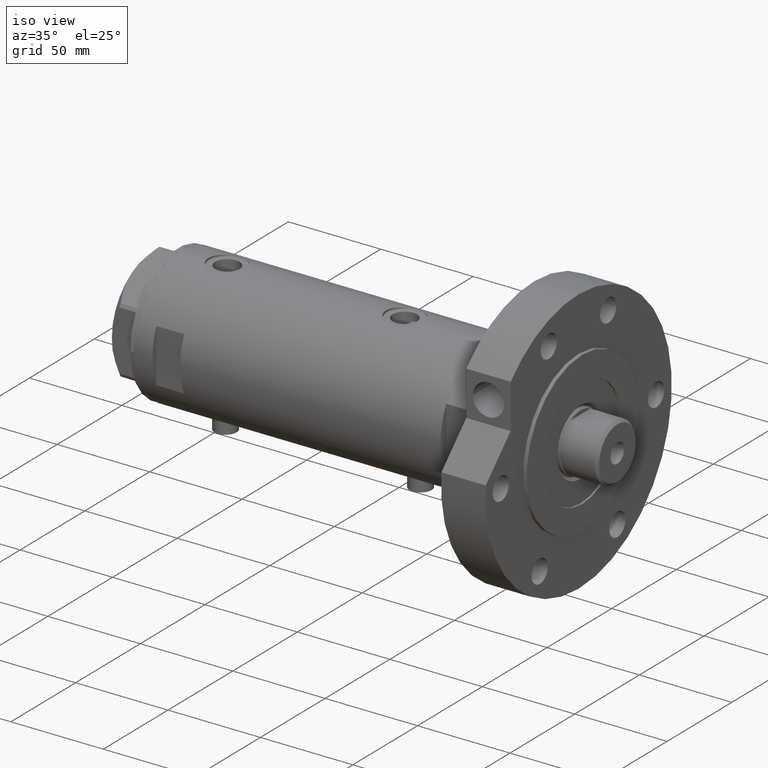
[diagram: clean part render]
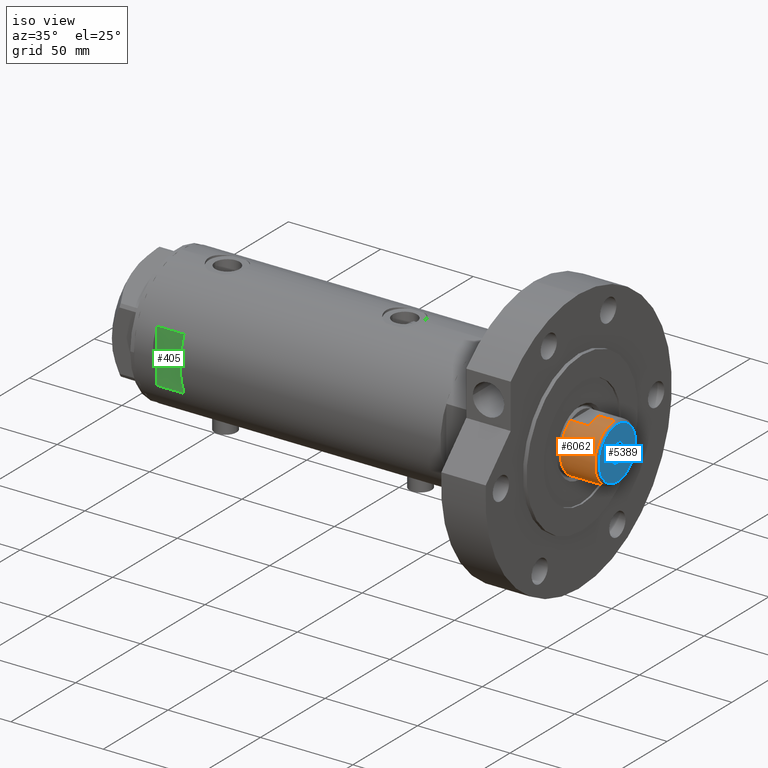
[diagram: same view with three faces highlighted in distinct colors, each labeled with its STEP entity id]
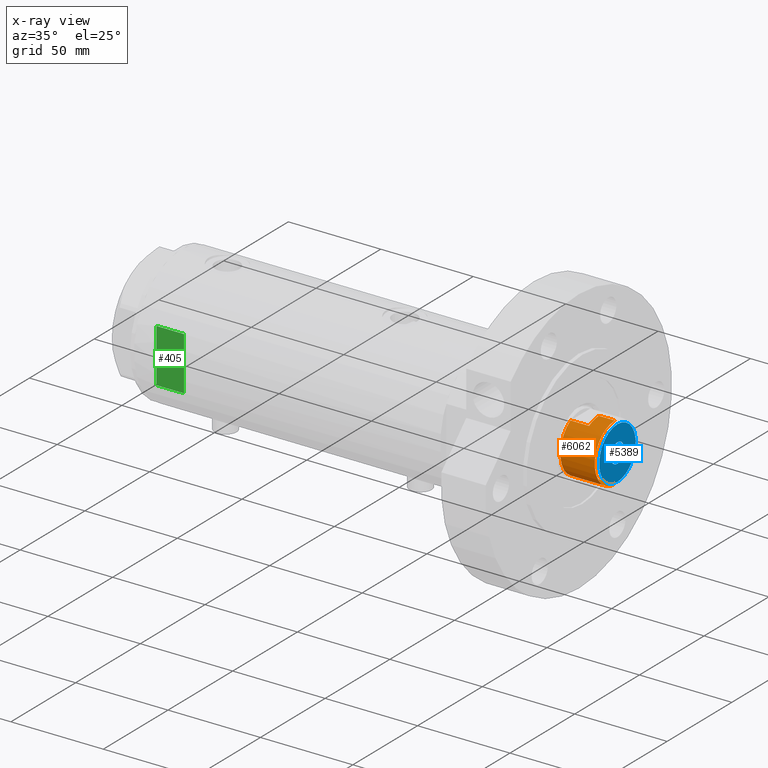
[diagram: x-ray of the same camera — body ghosted, the three highlighted faces saturated]
A machine part, iso view with three faces highlighted in distinct colors.
The next image is the same camera in x-ray (body ghosted, the three faces saturated) — at least one of them is partly hidden behind the body in this view.
Their STEP definitions:

[orange] entity #6062 — the highlighted cylindrical surface (edge-blend (fillet) strip) has radius 15.5 mm, axis along (-1, -0, 0).
#78 = DIRECTION ( 'NONE',  ( 0.000000000000000000, 0.000000000000000000, 1.000000000000000000 ) ) ;
#104 = DIRECTION ( 'NONE',  ( -0.000000000000000000, -0.000000000000000000, -1.000000000000000000 ) ) ;
#143 = DIRECTION ( 'NONE',  ( -1.000000000000000000, 0.000000000000000000, 0.000000000000000000 ) ) ;
#341 = ORIENTED_EDGE ( 'NONE', *, *, #3823, .T. ) ;
#389 = ORIENTED_EDGE ( 'NONE', *, *, #3943, .T. ) ;
#532 = ORIENTED_EDGE ( 'NONE', *, *, #3460, .T. ) ;
#569 = CARTESIAN_POINT ( 'NONE',  ( 0.000000000000000000, 0.000000000000000000, 200.0000000000000000 ) ) ;
#596 = VECTOR ( 'NONE', #4991, 1000.000000000000000 ) ;
#850 = ORIENTED_EDGE ( 'NONE', *, *, #1916, .T. ) ;
#984 = AXIS2_PLACEMENT_3D ( 'NONE', #2940, #4835, #5320 ) ;
#1025 = CARTESIAN_POINT ( 'NONE',  ( 13.48630416385453046, -7.639999999999995239, 200.0000000000000000 ) ) ;
#1053 = EDGE_CURVE ( 'NONE', #3560, #2727, #1561, .T. ) ;
#1066 = CIRCLE ( 'NONE', #1969, 15.49999999999999822 ) ;
#1126 = VERTEX_POINT ( 'NONE', #1627 ) ;
#1221 = CARTESIAN_POINT ( 'NONE',  ( 15.49999999999999822, 1.898202538678397163E-15, 208.5999999999999659 ) ) ;
#1230 = CARTESIAN_POINT ( 'NONE',  ( 15.50000000000000178, 1.898202538678397557E-15, 200.0000000000000000 ) ) ;
#1291 = CIRCLE ( 'NONE', #984, 15.49999999999999822 ) ;
#1329 = LINE ( 'NONE', #2754, #4954 ) ;
#1481 = CARTESIAN_POINT ( 'NONE',  ( 13.48630416385453046, -7.639999999999995239, 200.0000000000000000 ) ) ;
#1561 = CIRCLE ( 'NONE', #3047, 15.50000000000000000 ) ;
#1626 = ORIENTED_EDGE ( 'NONE', *, *, #1053, .T. ) ;
#1627 = CARTESIAN_POINT ( 'NONE',  ( 13.48630416385452691, -7.639999999999914415, 190.0000000000000000 ) ) ;
#1792 = VECTOR ( 'NONE', #2811, 1000.000000000000000 ) ;
#1888 = CIRCLE ( 'NONE', #3175, 15.50000000000000000 ) ;
#1916 = EDGE_CURVE ( 'NONE', #5024, #1126, #1066, .T. ) ;
#1969 = AXIS2_PLACEMENT_3D ( 'NONE', #2531, #4424, #3988 ) ;
#1996 = CARTESIAN_POINT ( 'NONE',  ( -13.48630416385452335, -7.640000000000004121, 200.0000000000000000 ) ) ;
#2169 = CARTESIAN_POINT ( 'NONE',  ( -13.48630416385452691, -7.640000000000001457, 200.0000000000000000 ) ) ;
#2268 = LINE ( 'NONE', #2169, #596 ) ;
#2504 = CARTESIAN_POINT ( 'NONE',  ( 0.000000000000000000, 0.000000000000000000, 200.0000000000000000 ) ) ;
#2531 = CARTESIAN_POINT ( 'NONE',  ( 0.000000000000000000, 0.000000000000000000, 190.0000000000000000 ) ) ;
#2727 = VERTEX_POINT ( 'NONE', #1996 ) ;
#2754 = CARTESIAN_POINT ( 'NONE',  ( 15.49999999999999822, 1.898202538678397163E-15, 200.0000000000000000 ) ) ;
#2794 = EDGE_CURVE ( 'NONE', #6013, #1126, #5305, .T. ) ;
#2811 = DIRECTION ( 'NONE',  ( -0.000000000000000000, -0.000000000000000000, -1.000000000000000000 ) ) ;
#2935 = ORIENTED_EDGE ( 'NONE', *, *, #5219, .T. ) ;
#2940 = CARTESIAN_POINT ( 'NONE',  ( 0.000000000000000000, 0.000000000000000000, 208.5999999999999659 ) ) ;
#2986 = AXIS2_PLACEMENT_3D ( 'NONE', #2504, #3861, #143 ) ;
#3039 = CARTESIAN_POINT ( 'NONE',  ( 0.000000000000000000, 0.000000000000000000, 200.0000000000000000 ) ) ;
#3047 = AXIS2_PLACEMENT_3D ( 'NONE', #569, #78, #5868 ) ;
#3175 = AXIS2_PLACEMENT_3D ( 'NONE', #3039, #5386, #4093 ) ;
#3220 = LINE ( 'NONE', #4757, #1792 ) ;
#3376 = ORIENTED_EDGE ( 'NONE', *, *, #5922, .F. ) ;
#3460 = EDGE_CURVE ( 'NONE', #6013, #4437, #1888, .T. ) ;
#3560 = VERTEX_POINT ( 'NONE', #4615 ) ;
#3806 = VERTEX_POINT ( 'NONE', #5735 ) ;
#3823 = EDGE_CURVE ( 'NONE', #4722, #3806, #1291, .T. ) ;
#3861 = DIRECTION ( 'NONE',  ( -0.000000000000000000, -0.000000000000000000, -1.000000000000000000 ) ) ;
#3943 = EDGE_CURVE ( 'NONE', #3806, #3560, #3220, .T. ) ;
#3988 = DIRECTION ( 'NONE',  ( 1.000000000000000000, 0.000000000000000000, 0.000000000000000000 ) ) ;
#4093 = DIRECTION ( 'NONE',  ( 1.000000000000000000, 0.000000000000000000, 0.000000000000000000 ) ) ;
#4346 = ORIENTED_EDGE ( 'NONE', *, *, #2794, .F. ) ;
#4389 = CARTESIAN_POINT ( 'NONE',  ( -13.48630416385452513, -7.639999999999921521, 190.0000000000000000 ) ) ;
#4424 = DIRECTION ( 'NONE',  ( 0.000000000000000000, 0.000000000000000000, 1.000000000000000000 ) ) ;
#4437 = VERTEX_POINT ( 'NONE', #1230 ) ;
#4615 = CARTESIAN_POINT ( 'NONE',  ( -15.50000000000000178, 0.000000000000000000, 200.0000000000000000 ) ) ;
#4722 = VERTEX_POINT ( 'NONE', #1221 ) ;
#4757 = CARTESIAN_POINT ( 'NONE',  ( -15.49999999999999822, 0.000000000000000000, 200.0000000000000000 ) ) ;
#4832 = FACE_OUTER_BOUND ( 'NONE', #5069, .T. ) ;
#4835 = DIRECTION ( 'NONE',  ( 0.000000000000000000, 0.000000000000000000, -1.000000000000000000 ) ) ;
#4954 = VECTOR ( 'NONE', #5168, 1000.000000000000000 ) ;
#4991 = DIRECTION ( 'NONE',  ( -0.000000000000000000, -0.000000000000000000, -1.000000000000000000 ) ) ;
#5024 = VERTEX_POINT ( 'NONE', #4389 ) ;
#5069 = EDGE_LOOP ( 'NONE', ( #3376, #341, #389, #1626, #2935, #850, #4346, #532 ) ) ;
#5168 = DIRECTION ( 'NONE',  ( -0.000000000000000000, -0.000000000000000000, -1.000000000000000000 ) ) ;
#5219 = EDGE_CURVE ( 'NONE', #2727, #5024, #2268, .T. ) ;
#5305 = LINE ( 'NONE', #1025, #5644 ) ;
#5320 = DIRECTION ( 'NONE',  ( 1.000000000000000000, 0.000000000000000000, 0.000000000000000000 ) ) ;
#5386 = DIRECTION ( 'NONE',  ( 0.000000000000000000, 0.000000000000000000, 1.000000000000000000 ) ) ;
#5644 = VECTOR ( 'NONE', #104, 1000.000000000000000 ) ;
#5735 = CARTESIAN_POINT ( 'NONE',  ( -15.49999999999999822, 0.000000000000000000, 208.5999999999999659 ) ) ;
#5764 = CYLINDRICAL_SURFACE ( 'NONE', #2986, 15.49999999999999822 ) ;
#5868 = DIRECTION ( 'NONE',  ( 1.000000000000000000, 0.000000000000000000, 0.000000000000000000 ) ) ;
#5922 = EDGE_CURVE ( 'NONE', #4722, #4437, #1329, .T. ) ;
#6013 = VERTEX_POINT ( 'NONE', #1481 ) ;
#6062 = ADVANCED_FACE ( 'NONE', ( #4832 ), #5764, .T. ) ;

[blue] entity #5389 — the highlighted planar face has unit normal (1, 0, -0).
#70 = DIRECTION ( 'NONE',  ( 1.000000000000000000, 0.000000000000000000, -0.000000000000000000 ) ) ;
#202 = CIRCLE ( 'NONE', #6051, 5.249999999999998224 ) ;
#277 = CARTESIAN_POINT ( 'NONE',  ( -14.09999999999997300, 0.000000000000000000, 210.0000000000000284 ) ) ;
#324 = VERTEX_POINT ( 'NONE', #3640 ) ;
#438 = CARTESIAN_POINT ( 'NONE',  ( -5.249999999999998224, 6.429395695523602181E-16, 210.0000000000000284 ) ) ;
#449 = DIRECTION ( 'NONE',  ( 0.000000000000000000, 0.000000000000000000, 1.000000000000000000 ) ) ;
#497 = EDGE_CURVE ( 'NONE', #2436, #4046, #4626, .T. ) ;
#558 = AXIS2_PLACEMENT_3D ( 'NONE', #5780, #3939, #2425 ) ;
#610 = DIRECTION ( 'NONE',  ( 1.000000000000000000, 0.000000000000000000, 0.000000000000000000 ) ) ;
#1148 = AXIS2_PLACEMENT_3D ( 'NONE', #3025, #4482, #610 ) ;
#1326 = EDGE_LOOP ( 'NONE', ( #2712, #4390 ) ) ;
#1452 = CARTESIAN_POINT ( 'NONE',  ( 0.000000000000000000, 0.000000000000000000, 210.0000000000000284 ) ) ;
#1453 = EDGE_CURVE ( 'NONE', #3115, #324, #4019, .T. ) ;
#1710 = ORIENTED_EDGE ( 'NONE', *, *, #6069, .F. ) ;
#1756 = EDGE_LOOP ( 'NONE', ( #1710, #3201 ) ) ;
#1994 = FACE_BOUND ( 'NONE', #1756, .T. ) ;
#2079 = AXIS2_PLACEMENT_3D ( 'NONE', #4928, #2570, #70 ) ;
#2126 = EDGE_CURVE ( 'NONE', #4046, #2436, #2465, .T. ) ;
#2173 = CARTESIAN_POINT ( 'NONE',  ( 14.09999999999997300, 1.812477262738080903E-15, 210.0000000000000284 ) ) ;
#2375 = CARTESIAN_POINT ( 'NONE',  ( 0.000000000000000000, 0.000000000000000000, 210.0000000000000284 ) ) ;
#2425 = DIRECTION ( 'NONE',  ( 1.000000000000000000, 0.000000000000000000, 0.000000000000000000 ) ) ;
#2436 = VERTEX_POINT ( 'NONE', #2173 ) ;
#2465 = CIRCLE ( 'NONE', #5828, 14.09999999999997300 ) ;
#2543 = PLANE ( 'NONE',  #2079 ) ;
#2570 = DIRECTION ( 'NONE',  ( 0.000000000000000000, 0.000000000000000000, 1.000000000000000000 ) ) ;
#2712 = ORIENTED_EDGE ( 'NONE', *, *, #2126, .T. ) ;
#3025 = CARTESIAN_POINT ( 'NONE',  ( 0.000000000000000000, 0.000000000000000000, 210.0000000000000284 ) ) ;
#3115 = VERTEX_POINT ( 'NONE', #438 ) ;
#3201 = ORIENTED_EDGE ( 'NONE', *, *, #1453, .F. ) ;
#3640 = CARTESIAN_POINT ( 'NONE',  ( 5.249999999999998224, 0.000000000000000000, 210.0000000000000284 ) ) ;
#3939 = DIRECTION ( 'NONE',  ( -0.000000000000000000, -0.000000000000000000, 1.000000000000000000 ) ) ;
#4019 = CIRCLE ( 'NONE', #558, 5.249999999999998224 ) ;
#4046 = VERTEX_POINT ( 'NONE', #277 ) ;
#4370 = DIRECTION ( 'NONE',  ( 1.000000000000000000, 0.000000000000000000, 0.000000000000000000 ) ) ;
#4390 = ORIENTED_EDGE ( 'NONE', *, *, #497, .T. ) ;
#4436 = FACE_OUTER_BOUND ( 'NONE', #1326, .T. ) ;
#4482 = DIRECTION ( 'NONE',  ( 0.000000000000000000, 0.000000000000000000, 1.000000000000000000 ) ) ;
#4626 = CIRCLE ( 'NONE', #1148, 14.09999999999997300 ) ;
#4928 = CARTESIAN_POINT ( 'NONE',  ( 0.000000000000000000, 0.000000000000000000, 210.0000000000000284 ) ) ;
#5161 = DIRECTION ( 'NONE',  ( 1.000000000000000000, 0.000000000000000000, 0.000000000000000000 ) ) ;
#5288 = DIRECTION ( 'NONE',  ( -0.000000000000000000, -0.000000000000000000, 1.000000000000000000 ) ) ;
#5389 = ADVANCED_FACE ( 'NONE', ( #4436, #1994 ), #2543, .T. ) ;
#5780 = CARTESIAN_POINT ( 'NONE',  ( 0.000000000000000000, 0.000000000000000000, 210.0000000000000284 ) ) ;
#5828 = AXIS2_PLACEMENT_3D ( 'NONE', #2375, #449, #5161 ) ;
#6051 = AXIS2_PLACEMENT_3D ( 'NONE', #1452, #5288, #4370 ) ;
#6069 = EDGE_CURVE ( 'NONE', #324, #3115, #202, .T. ) ;

[green] entity #405 — the highlighted planar face has unit normal (-0, 1, 0).
#117 = DIRECTION ( 'NONE',  ( 1.000000000000000000, -0.000000000000000000, -0.000000000000000000 ) ) ;
#226 = CARTESIAN_POINT ( 'NONE',  ( -36.50000000000000000, -33.50000000000000000, 57.89999999999999147 ) ) ;
#295 = FACE_OUTER_BOUND ( 'NONE', #677, .T. ) ;
#405 = ADVANCED_FACE ( 'NONE', ( #295 ), #2217, .F. ) ;
#411 = ORIENTED_EDGE ( 'NONE', *, *, #608, .T. ) ;
#608 = EDGE_CURVE ( 'NONE', #5166, #639, #1061, .T. ) ;
#639 = VERTEX_POINT ( 'NONE', #3954 ) ;
#677 = EDGE_LOOP ( 'NONE', ( #748, #411, #4090, #5941 ) ) ;
#748 = ORIENTED_EDGE ( 'NONE', *, *, #940, .T. ) ;
#940 = EDGE_CURVE ( 'NONE', #1347, #5166, #1444, .T. ) ;
#1061 = LINE ( 'NONE', #226, #4917 ) ;
#1347 = VERTEX_POINT ( 'NONE', #3912 ) ;
#1444 = LINE ( 'NONE', #5185, #1655 ) ;
#1455 = CARTESIAN_POINT ( 'NONE',  ( -36.50000000000000000, -33.50000000000000000, 72.89999999999999147 ) ) ;
#1655 = VECTOR ( 'NONE', #2903, 1000.000000000000000 ) ;
#1732 = DIRECTION ( 'NONE',  ( 0.000000000000000000, 1.000000000000000000, 0.000000000000000000 ) ) ;
#2217 = PLANE ( 'NONE',  #5414 ) ;
#2292 = VECTOR ( 'NONE', #5737, 1000.000000000000000 ) ;
#2635 = CARTESIAN_POINT ( 'NONE',  ( -14.49137674618942739, -33.50000000000000000, 57.89999999999999147 ) ) ;
#2690 = DIRECTION ( 'NONE',  ( 0.000000000000000000, -0.000000000000000000, 1.000000000000000000 ) ) ;
#2796 = CARTESIAN_POINT ( 'NONE',  ( 14.49137674618942739, -33.50000000000000000, 72.89999999999999147 ) ) ;
#2903 = DIRECTION ( 'NONE',  ( -0.000000000000000000, -0.000000000000000000, -1.000000000000000000 ) ) ;
#3613 = CARTESIAN_POINT ( 'NONE',  ( 14.49137674618942739, -33.50000000000000000, -82.90000000000000568 ) ) ;
#3912 = CARTESIAN_POINT ( 'NONE',  ( -14.49137674618942739, -33.50000000000000000, 72.89999999999999147 ) ) ;
#3954 = CARTESIAN_POINT ( 'NONE',  ( 14.49137674618942739, -33.50000000000000000, 57.89999999999999147 ) ) ;
#4090 = ORIENTED_EDGE ( 'NONE', *, *, #5769, .T. ) ;
#4639 = EDGE_CURVE ( 'NONE', #1347, #5560, #5821, .T. ) ;
#4917 = VECTOR ( 'NONE', #117, 1000.000000000000000 ) ;
#4949 = DIRECTION ( 'NONE',  ( 0.000000000000000000, 0.000000000000000000, 1.000000000000000000 ) ) ;
#5166 = VERTEX_POINT ( 'NONE', #2635 ) ;
#5185 = CARTESIAN_POINT ( 'NONE',  ( -14.49137674618942739, -33.50000000000000000, -82.90000000000000568 ) ) ;
#5414 = AXIS2_PLACEMENT_3D ( 'NONE', #5973, #1732, #2690 ) ;
#5548 = VECTOR ( 'NONE', #4949, 1000.000000000000000 ) ;
#5560 = VERTEX_POINT ( 'NONE', #2796 ) ;
#5737 = DIRECTION ( 'NONE',  ( 1.000000000000000000, -0.000000000000000000, -0.000000000000000000 ) ) ;
#5769 = EDGE_CURVE ( 'NONE', #639, #5560, #6005, .T. ) ;
#5821 = LINE ( 'NONE', #1455, #2292 ) ;
#5941 = ORIENTED_EDGE ( 'NONE', *, *, #4639, .F. ) ;
#5973 = CARTESIAN_POINT ( 'NONE',  ( -36.50000000000000000, -33.50000000000000000, 72.89999999999999147 ) ) ;
#6005 = LINE ( 'NONE', #3613, #5548 ) ;